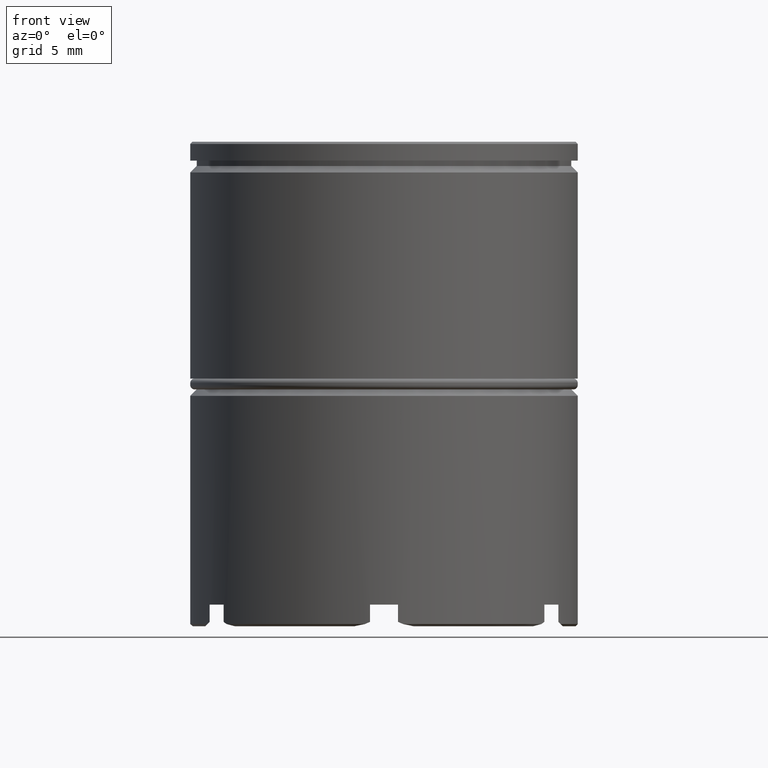
[diagram: clean part render]
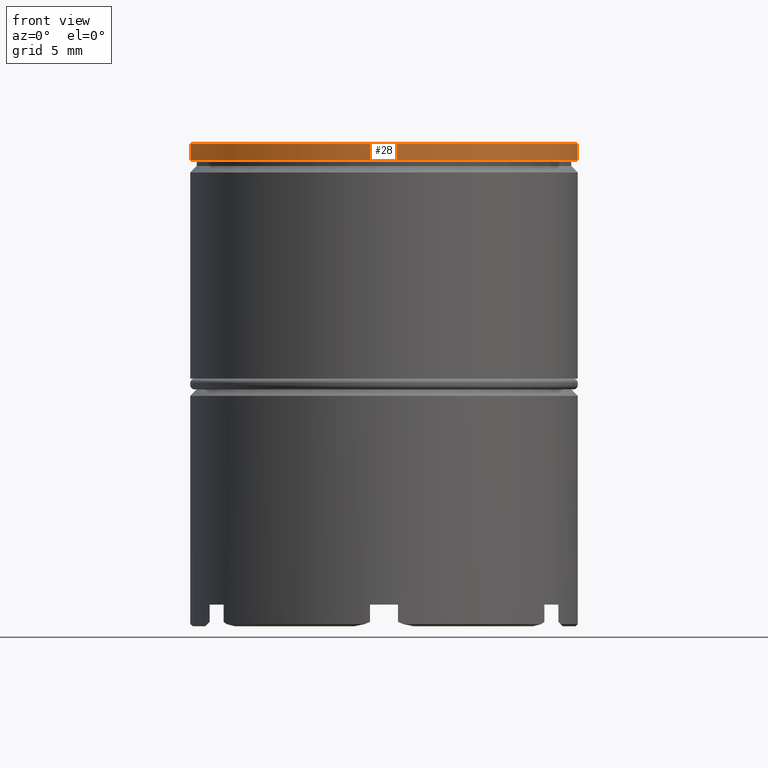
[diagram: same view with one face highlighted and labeled with its STEP entity id]
A machine part, front view. The second image highlights one B-rep face of the part: STEP entity #28.
In plain terms, the highlighted cylindrical surface (partial cylindrical patch) has radius 9 mm, axis along (-0, -0, 1).
Its self-contained STEP definition (entity closure, byte-faithful):
#3 = CYLINDRICAL_SURFACE ( 'NONE', #546, 9.000000000000000000 ) ;
#18 = VECTOR ( 'NONE', #777, 1000.000000000000000 ) ;
#28 = ADVANCED_FACE ( 'NONE', ( #1015 ), #3, .T. ) ;
#33 = ORIENTED_EDGE ( 'NONE', *, *, #267, .T. ) ;
#48 = ORIENTED_EDGE ( 'NONE', *, *, #499, .F. ) ;
#181 = LINE ( 'NONE', #689, #1531 ) ;
#202 = EDGE_CURVE ( 'NONE', #470, #836, #517, .T. ) ;
#246 = ORIENTED_EDGE ( 'NONE', *, *, #202, .T. ) ;
#267 = EDGE_CURVE ( 'NONE', #587, #1202, #351, .T. ) ;
#351 = CIRCLE ( 'NONE', #563, 9.000000000000000000 ) ;
#421 = CARTESIAN_POINT ( 'NONE',  ( 9.000000000000000000, 0.000000000000000000, -0.09999999999999419076 ) ) ;
#446 = CARTESIAN_POINT ( 'NONE',  ( -9.000000000000000000, 1.102182119232617714E-15, -0.8749999999999998890 ) ) ;
#470 = VERTEX_POINT ( 'NONE', #421 ) ;
#484 = DIRECTION ( 'NONE',  ( 1.000000000000000000, 0.000000000000000000, 0.000000000000000000 ) ) ;
#499 = EDGE_CURVE ( 'NONE', #587, #836, #181, .T. ) ;
#517 = CIRCLE ( 'NONE', #1427, 9.000000000000000000 ) ;
#522 = CARTESIAN_POINT ( 'NONE',  ( 0.000000000000000000, 0.000000000000000000, 0.000000000000000000 ) ) ;
#546 = AXIS2_PLACEMENT_3D ( 'NONE', #522, #634, #1141 ) ;
#563 = AXIS2_PLACEMENT_3D ( 'NONE', #596, #866, #484 ) ;
#587 = VERTEX_POINT ( 'NONE', #446 ) ;
#596 = CARTESIAN_POINT ( 'NONE',  ( 0.000000000000000000, 0.000000000000000000, -0.8749999999999998890 ) ) ;
#634 = DIRECTION ( 'NONE',  ( -0.000000000000000000, -0.000000000000000000, 1.000000000000000000 ) ) ;
#689 = CARTESIAN_POINT ( 'NONE',  ( -9.000000000000000000, 1.102182119232617714E-15, 0.000000000000000000 ) ) ;
#777 = DIRECTION ( 'NONE',  ( -0.000000000000000000, -0.000000000000000000, 1.000000000000000000 ) ) ;
#836 = VERTEX_POINT ( 'NONE', #883 ) ;
#852 = DIRECTION ( 'NONE',  ( 1.000000000000000000, 0.000000000000000000, 0.000000000000000000 ) ) ;
#866 = DIRECTION ( 'NONE',  ( -0.000000000000000000, -0.000000000000000000, 1.000000000000000000 ) ) ;
#883 = CARTESIAN_POINT ( 'NONE',  ( -9.000000000000000000, 1.102182119232617714E-15, -0.09999999999999419076 ) ) ;
#927 = CARTESIAN_POINT ( 'NONE',  ( 9.000000000000000000, 0.000000000000000000, -0.8749999999999998890 ) ) ;
#1015 = FACE_OUTER_BOUND ( 'NONE', #1228, .T. ) ;
#1018 = LINE ( 'NONE', #1404, #18 ) ;
#1124 = DIRECTION ( 'NONE',  ( 0.000000000000000000, 0.000000000000000000, -1.000000000000000000 ) ) ;
#1141 = DIRECTION ( 'NONE',  ( 1.000000000000000000, 0.000000000000000000, 0.000000000000000000 ) ) ;
#1202 = VERTEX_POINT ( 'NONE', #927 ) ;
#1228 = EDGE_LOOP ( 'NONE', ( #48, #33, #1351, #246 ) ) ;
#1329 = DIRECTION ( 'NONE',  ( -0.000000000000000000, -0.000000000000000000, 1.000000000000000000 ) ) ;
#1347 = CARTESIAN_POINT ( 'NONE',  ( 0.000000000000000000, 0.000000000000000000, -0.09999999999999419076 ) ) ;
#1351 = ORIENTED_EDGE ( 'NONE', *, *, #1464, .T. ) ;
#1404 = CARTESIAN_POINT ( 'NONE',  ( 9.000000000000000000, 0.000000000000000000, 0.000000000000000000 ) ) ;
#1427 = AXIS2_PLACEMENT_3D ( 'NONE', #1347, #1124, #852 ) ;
#1464 = EDGE_CURVE ( 'NONE', #1202, #470, #1018, .T. ) ;
#1531 = VECTOR ( 'NONE', #1329, 1000.000000000000000 ) ;